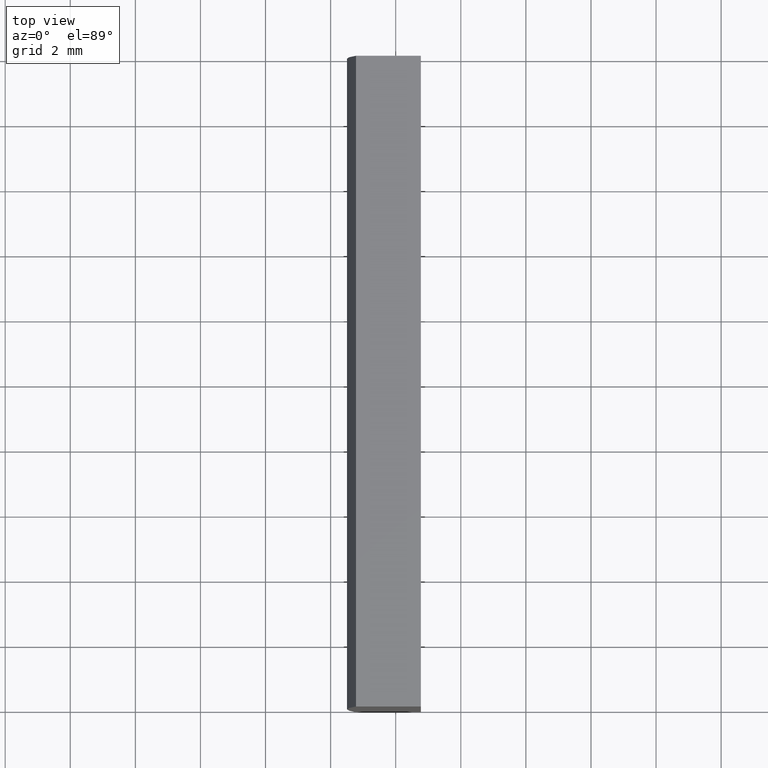
[diagram: clean part render]
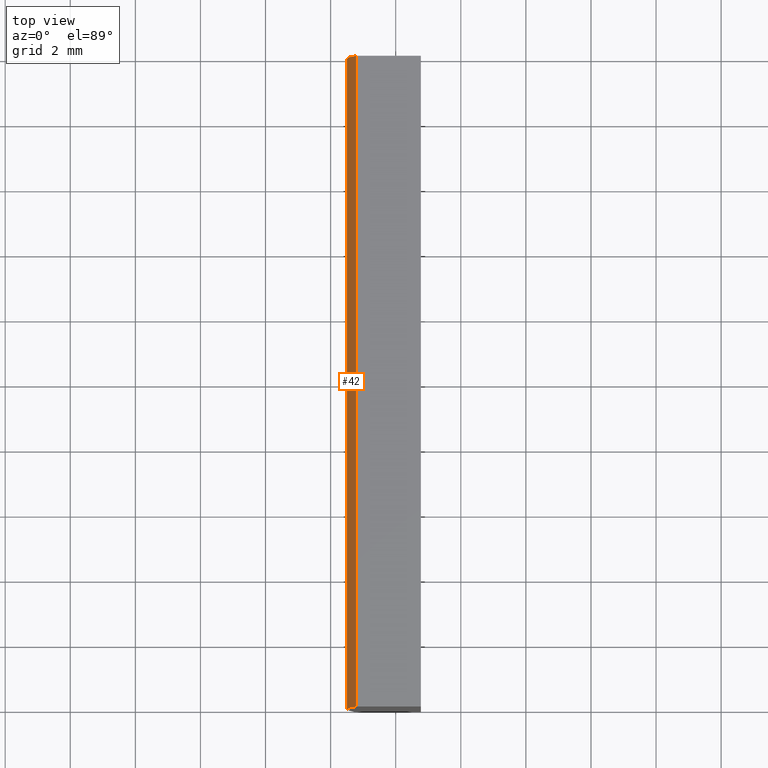
[diagram: same view with one face highlighted and labeled with its STEP entity id]
A machine part, top view. The second image highlights one B-rep face of the part: STEP entity #42.
In plain terms, the highlighted cylindrical surface (partial cylindrical patch) has radius 45.85 mm, axis along (-0, -1, -0).
Its self-contained STEP definition (entity closure, byte-faithful):
#1 = CARTESIAN_POINT ( 'NONE',  ( 4.355204334851265500, 0.0000000000000000000, 4.286263797015675000E-017 ) ) ;
#14 = VECTOR ( 'NONE', #188, 1000.000000000000000 ) ;
#23 = ORIENTED_EDGE ( 'NONE', *, *, #77, .F. ) ;
#26 = VERTEX_POINT ( 'NONE', #190 ) ;
#30 = ORIENTED_EDGE ( 'NONE', *, *, #152, .T. ) ;
#40 = DIRECTION ( 'NONE',  ( -0.0000000000000000000, -1.000000000000000000, -0.0000000000000000000 ) ) ;
#42 = ADVANCED_FACE ( 'NONE', ( #75 ), #140, .T. ) ;
#45 = DIRECTION ( 'NONE',  ( 0.0000000000000000000, 1.000000000000000000, 0.0000000000000000000 ) ) ;
#47 = DIRECTION ( 'NONE',  ( 0.0000000000000000000, 0.0000000000000000000, 1.000000000000000000 ) ) ;
#60 = ORIENTED_EDGE ( 'NONE', *, *, #108, .F. ) ;
#62 = CARTESIAN_POINT ( 'NONE',  ( -41.22135213884472900, 0.0000000000000000000, 5.000000000000000000 ) ) ;
#67 = CIRCLE ( 'NONE', #127, 45.85000000000000100 ) ;
#75 = FACE_OUTER_BOUND ( 'NONE', #116, .T. ) ;
#76 = DIRECTION ( 'NONE',  ( 0.0000000000000000000, 0.0000000000000000000, 1.000000000000000000 ) ) ;
#77 = EDGE_CURVE ( 'NONE', #150, #130, #147, .T. ) ;
#80 = AXIS2_PLACEMENT_3D ( 'NONE', #158, #45, #47 ) ;
#87 = DIRECTION ( 'NONE',  ( 0.0000000000000000000, 1.000000000000000000, 0.0000000000000000000 ) ) ;
#88 = CARTESIAN_POINT ( 'NONE',  ( -41.22135213884472900, 20.00000000000000000, -5.000000000000000000 ) ) ;
#96 = VECTOR ( 'NONE', #40, 1000.000000000000000 ) ;
#105 = DIRECTION ( 'NONE',  ( -0.0000000000000000000, -1.000000000000000000, -0.0000000000000000000 ) ) ;
#108 = EDGE_CURVE ( 'NONE', #130, #203, #169, .T. ) ;
#114 = EDGE_CURVE ( 'NONE', #26, #203, #67, .T. ) ;
#116 = EDGE_LOOP ( 'NONE', ( #192, #60, #23, #30 ) ) ;
#124 = AXIS2_PLACEMENT_3D ( 'NONE', #163, #105, #171 ) ;
#127 = AXIS2_PLACEMENT_3D ( 'NONE', #1, #87, #76 ) ;
#130 = VERTEX_POINT ( 'NONE', #139 ) ;
#139 = CARTESIAN_POINT ( 'NONE',  ( -41.22135213884472900, 20.00000000000000000, 5.000000000000000000 ) ) ;
#140 = CYLINDRICAL_SURFACE ( 'NONE', #124, 45.85000000000000100 ) ;
#147 = CIRCLE ( 'NONE', #80, 45.85000000000000100 ) ;
#150 = VERTEX_POINT ( 'NONE', #153 ) ;
#152 = EDGE_CURVE ( 'NONE', #150, #26, #183, .T. ) ;
#153 = CARTESIAN_POINT ( 'NONE',  ( -41.22135213884472900, 20.00000000000000000, -5.000000000000000000 ) ) ;
#158 = CARTESIAN_POINT ( 'NONE',  ( 4.355204334851265500, 20.00000000000000000, 4.286263797015675000E-017 ) ) ;
#163 = CARTESIAN_POINT ( 'NONE',  ( 4.355204334851265500, 20.00000000000000000, 4.286263797015675000E-017 ) ) ;
#169 = LINE ( 'NONE', #177, #14 ) ;
#171 = DIRECTION ( 'NONE',  ( 0.0000000000000000000, 0.0000000000000000000, -1.000000000000000000 ) ) ;
#177 = CARTESIAN_POINT ( 'NONE',  ( -41.22135213884472900, 20.00000000000000000, 5.000000000000000000 ) ) ;
#183 = LINE ( 'NONE', #88, #96 ) ;
#188 = DIRECTION ( 'NONE',  ( -0.0000000000000000000, -1.000000000000000000, -0.0000000000000000000 ) ) ;
#190 = CARTESIAN_POINT ( 'NONE',  ( -41.22135213884472900, 0.0000000000000000000, -5.000000000000000000 ) ) ;
#192 = ORIENTED_EDGE ( 'NONE', *, *, #114, .T. ) ;
#203 = VERTEX_POINT ( 'NONE', #62 ) ;